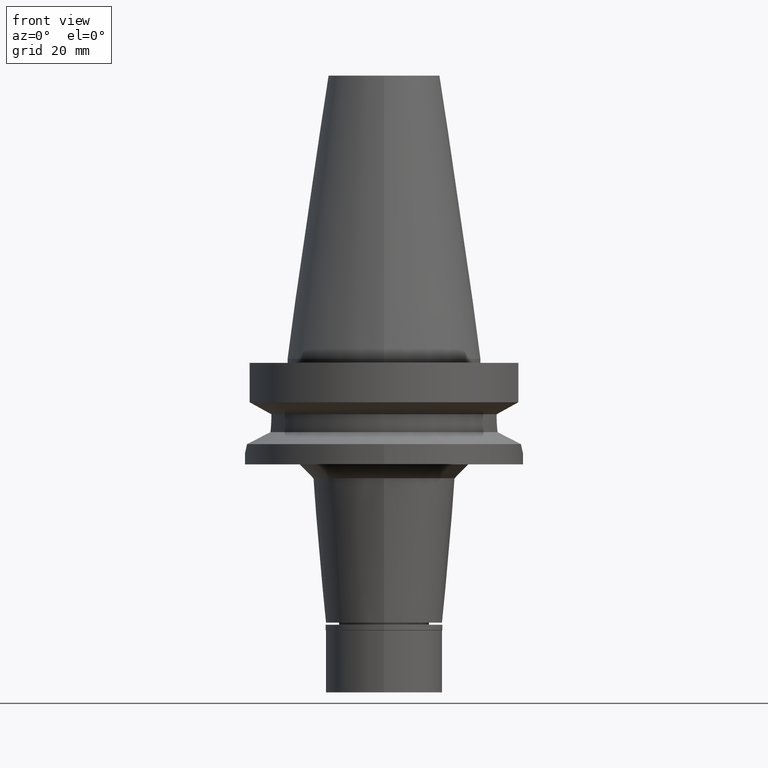
[diagram: clean part render]
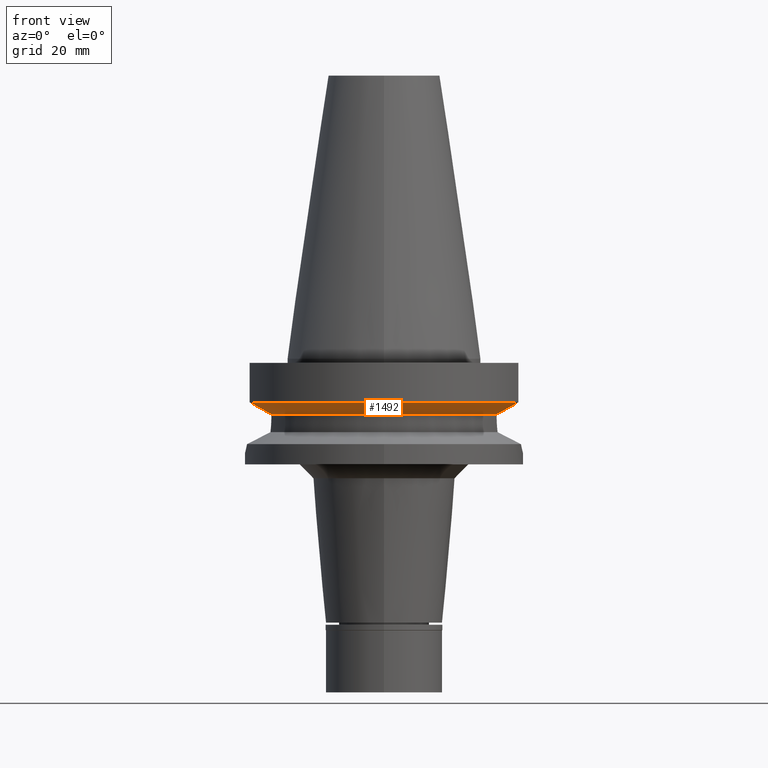
[diagram: same view with one face highlighted and labeled with its STEP entity id]
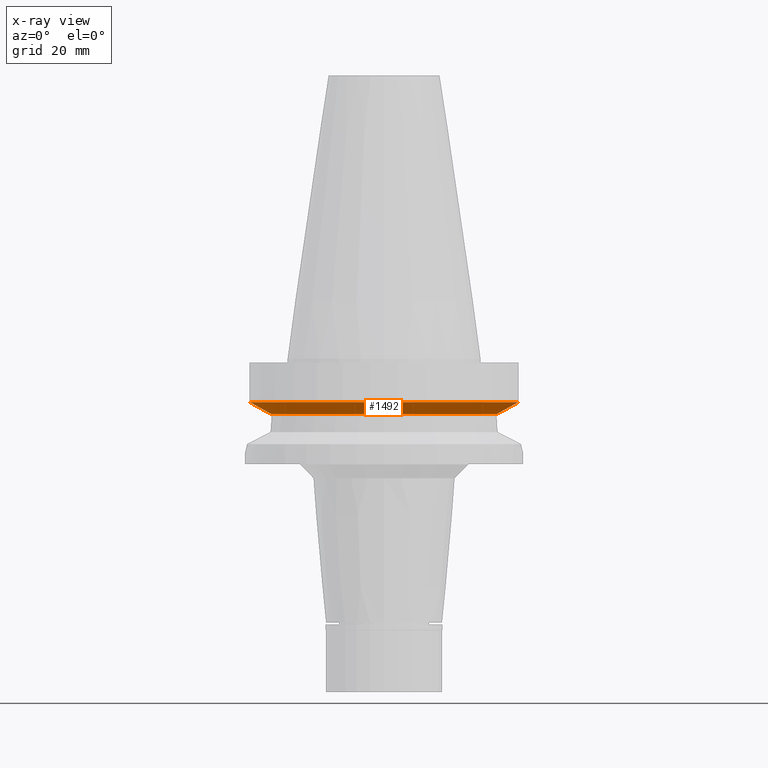
[diagram: x-ray of the same camera — body ghosted, the highlighted face saturated]
A machine part, front view. The second image highlights one B-rep face of the part: STEP entity #1492.
The next image is the same camera in x-ray: the body ghosted, the highlighted face saturated — about 0% of this face is hidden behind the body in this view.
In plain terms, the highlighted conical surface has half-angle 60 deg.
Its self-contained STEP definition (entity closure, byte-faithful):
#9 = ORIENTED_EDGE ( 'NONE', *, *, #2121, .T. ) ;
#146 = FACE_OUTER_BOUND ( 'NONE', #989, .T. ) ;
#185 = CARTESIAN_POINT ( 'NONE',  ( 45.51179412168041694, -12.85000770615507015, -17.22986976001048376 ) ) ;
#205 = CARTESIAN_POINT ( 'NONE',  ( 0.0000000000000000000, 1.006319759053999930E-14, -19.99281925464999787 ) ) ;
#236 = CONICAL_SURFACE ( 'NONE', #1798, 46.25000000000000000, 1.047197551196400456 ) ;
#255 = CARTESIAN_POINT ( 'NONE',  ( 48.32057015392000210, -12.84999999999999964, -15.66269223573000069 ) ) ;
#279 = CARTESIAN_POINT ( 'NONE',  ( 48.32057015392000210, -12.84999999999999964, -15.66269223573000069 ) ) ;
#557 = AXIS2_PLACEMENT_3D ( 'NONE', #2198, #2798, #2728 ) ;
#634 = DIRECTION ( 'NONE',  ( 0.0000000000000000000, 0.0000000000000000000, 1.000000000000000000 ) ) ;
#645 = CIRCLE ( 'NONE', #557, 50.00000000000000000 ) ;
#819 = DIRECTION ( 'NONE',  ( 0.9531960443486575674, -0.3023529411764863672, 0.0000000000000000000 ) ) ;
#929 = DIRECTION ( 'NONE',  ( 0.0000000000000000000, 0.0000000000000000000, -1.000000000000000000 ) ) ;
#932 = CARTESIAN_POINT ( 'NONE',  ( -45.51179875687467558, -12.85000770587053687, -17.22986720362330004 ) ) ;
#989 = EDGE_LOOP ( 'NONE', ( #2251, #1416, #9, #1764 ) ) ;
#1080 = VERTEX_POINT ( 'NONE', #2376 ) ;
#1294 = B_SPLINE_CURVE_WITH_KNOTS ( 'NONE', 3,
 ( #1927, #932, #2893, #1899 ),
 .UNSPECIFIED., .F., .F.,
 ( 4, 4 ),
 ( 0.0000000000000000000, 1.000000000000000000 ),
 .UNSPECIFIED. ) ;
#1416 = ORIENTED_EDGE ( 'NONE', *, *, #2633, .F. ) ;
#1487 = CARTESIAN_POINT ( 'NONE',  ( 40.51083188481999997, -12.84999999999999964, -19.99281925464999787 ) ) ;
#1492 = ADVANCED_FACE ( 'NONE', ( #146 ), #236, .T. ) ;
#1618 = B_SPLINE_CURVE_WITH_KNOTS ( 'NONE', 3,
 ( #1487, #2469, #185, #255 ),
 .UNSPECIFIED., .F., .F.,
 ( 4, 4 ),
 ( 0.0000000000000000000, 1.000000000000000000 ),
 .UNSPECIFIED. ) ;
#1686 = CARTESIAN_POINT ( 'NONE',  ( -48.32056912868000609, -12.85000385526000066, -15.66265770066999785 ) ) ;
#1740 = EDGE_CURVE ( 'NONE', #2479, #3115, #645, .T. ) ;
#1764 = ORIENTED_EDGE ( 'NONE', *, *, #1740, .F. ) ;
#1798 = AXIS2_PLACEMENT_3D ( 'NONE', #2832, #634, #3025 ) ;
#1899 = CARTESIAN_POINT ( 'NONE',  ( -40.51083297773000425, -12.84999655450999967, -19.99284569641000076 ) ) ;
#1927 = CARTESIAN_POINT ( 'NONE',  ( -48.32056912868000609, -12.85000385526000066, -15.66265770066999785 ) ) ;
#2121 = EDGE_CURVE ( 'NONE', #2536, #3115, #1618, .T. ) ;
#2193 = AXIS2_PLACEMENT_3D ( 'NONE', #205, #929, #819 ) ;
#2198 = CARTESIAN_POINT ( 'NONE',  ( 0.0000000000000000000, 1.006319759053999930E-14, -15.66269223573000069 ) ) ;
#2251 = ORIENTED_EDGE ( 'NONE', *, *, #2885, .T. ) ;
#2376 = CARTESIAN_POINT ( 'NONE',  ( -40.51083297773000425, -12.84999655450999967, -19.99284569641000076 ) ) ;
#2453 = CIRCLE ( 'NONE', #2193, 42.50000000000002132 ) ;
#2469 = CARTESIAN_POINT ( 'NONE',  ( 42.90862807001017387, -12.84999309183495519, -18.67324603237255687 ) ) ;
#2479 = VERTEX_POINT ( 'NONE', #1686 ) ;
#2536 = VERTEX_POINT ( 'NONE', #2865 ) ;
#2633 = EDGE_CURVE ( 'NONE', #2536, #1080, #2453, .T. ) ;
#2728 = DIRECTION ( 'NONE',  ( 0.0000000000000000000, -1.000000000000000000, 0.0000000000000000000 ) ) ;
#2798 = DIRECTION ( 'NONE',  ( 0.0000000000000000000, 0.0000000000000000000, 1.000000000000000000 ) ) ;
#2832 = CARTESIAN_POINT ( 'NONE',  ( 0.0000000000000000000, 1.006319759053999930E-14, -17.82775574519000017 ) ) ;
#2865 = CARTESIAN_POINT ( 'NONE',  ( 40.51083188481999997, -12.84999999999999964, -19.99281925464999787 ) ) ;
#2885 = EDGE_CURVE ( 'NONE', #2479, #1080, #1294, .T. ) ;
#2893 = CARTESIAN_POINT ( 'NONE',  ( -42.90862462381601716, -12.84999310200722888, -18.67324795799819626 ) ) ;
#3025 = DIRECTION ( 'NONE',  ( 0.0000000000000000000, 1.000000000000000000, 0.0000000000000000000 ) ) ;
#3115 = VERTEX_POINT ( 'NONE', #279 ) ;